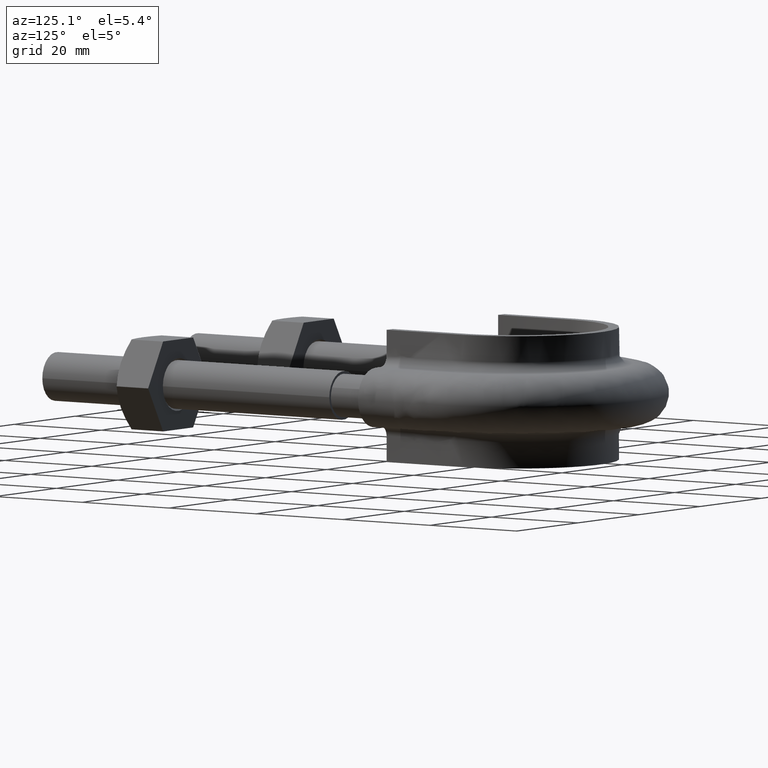
[diagram: clean part render]
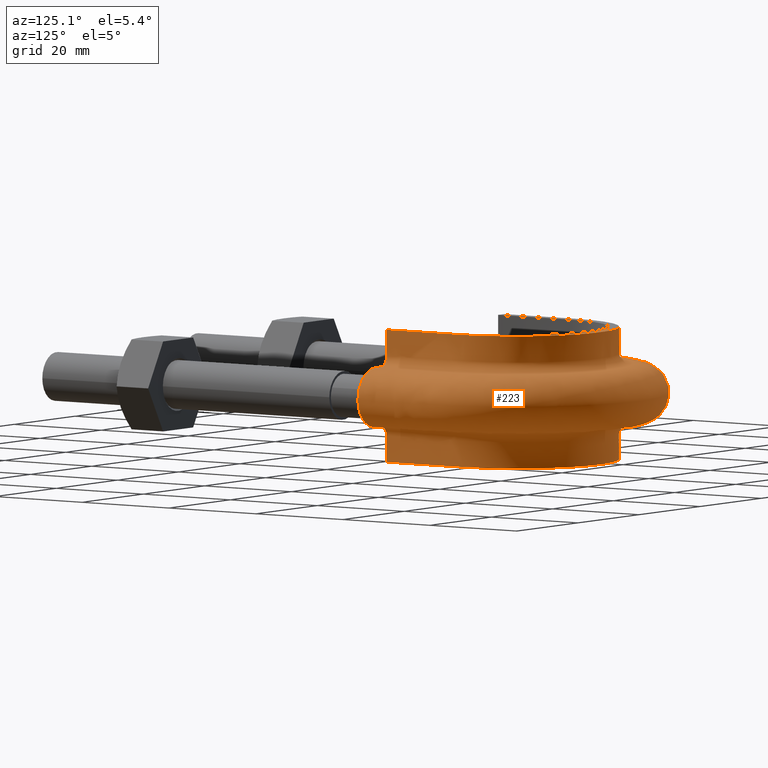
[diagram: same view with one face highlighted and labeled with its STEP entity id]
A machine part, auxiliary view. The second image highlights one B-rep face of the part: STEP entity #223.
In plain terms, the highlighted face is a freeform B-spline surface patch.
Its self-contained STEP definition (entity closure, byte-faithful):
#223 = ADVANCED_FACE( '', ( #306 ), #307, .F. );
#306 = FACE_OUTER_BOUND( '', #479, .T. );
#307 = B_SPLINE_SURFACE_WITH_KNOTS( '', 3, 3, ( ( #480, #481, #482, #483, #484, #485, #486, #487, #488, #489, #490, #491, #492, #493, #494, #495, #496 ), ( #497, #498, #499, #500, #501, #502, #503, #504, #505, #506, #507, #508, #509, #510, #511, #512, #513 ), ( #514, #515, #516, #517, #518, #519, #520, #521, #522, #523, #524, #525, #526, #527, #528, #529, #530 ), ( #531, #532, #533, #534, #535, #536, #537, #538, #539, #540, #541, #542, #543, #544, #545, #546, #547 ), ( #548, #549, #550, #551, #552, #553, #554, #555, #556, #557, #558, #559, #560, #561, #562, #563, #564 ), ( #565, #566, #567, #568, #569, #570, #571, #572, #573, #574, #575, #576, #577, #578, #579, #580, #581 ), ( #582, #583, #584, #585, #586, #587, #588, #589, #590, #591, #592, #593, #594, #595, #596, #597, #598 ), ( #599, #600, #601, #602, #603, #604, #605, #606, #607, #608, #609, #610, #611, #612, #613, #614, #615 ), ( #616, #617, #618, #619, #620, #621, #622, #623, #624, #625, #626, #627, #628, #629, #630, #631, #632 ), ( #633, #634, #635, #636, #637, #638, #639, #640, #641, #642, #643, #644, #645, #646, #647, #648, #649 ), ( #650, #651, #652, #653, #654, #655, #656, #657, #658, #659, #660, #661, #662, #663, #664, #665, #666 ), ( #667, #668, #669, #670, #671, #672, #673, #674, #675, #676, #677, #678, #679, #680, #681, #682, #683 ), ( #684, #685, #686, #687, #688, #689, #690, #691, #692, #693, #694, #695, #696, #697, #698, #699, #700 ), ( #701, #702, #703, #704, #705, #706, #707, #708, #709, #710, #711, #712, #713, #714, #715, #716, #717 ), ( #718, #719, #720, #721, #722, #723, #724, #725, #726, #727, #728, #729, #730, #731, #732, #733, #734 ), ( #735, #736, #737, #738, #739, #740, #741, #742, #743, #744, #745, #746, #747, #748, #749, #750, #751 ), ( #752, #753, #754, #755, #756, #757, #758, #759, #760, #761, #762, #763, #764, #765, #766, #767, #768 ), ( #769, #770, #771, #772, #773, #774, #775, #776, #777, #778, #779, #780, #781, #782, #783, #784, #785 ), ( #786, #787, #788, #789, #790, #791, #792, #793, #794, #795, #796, #797, #798, #799, #800, #801, #802 ), ( #803, #804, #805, #806, #807, #808, #809, #810, #811, #812, #813, #814, #815, #816, #817, #818, #819 ), ( #820, #821, #822, #823, #824, #825, #826, #827, #828, #829, #830, #831, #832, #833, #834, #835, #836 ), ( #837, #838, #839, #840, #841, #842, #843, #844, #845, #846, #847, #848, #849, #850, #851, #852, #853 ), ( #854, #855, #856, #857, #858, #859, #860, #861, #862, #863, #864, #865, #866, #867, #868, #869, #870 ), ( #871, #872, #873, #874, #875, #876, #877, #878, #879, #880, #881, #882, #883, #884, #885, #886, #887 ), ( #888, #889, #890, #891, #892, #893, #894, #895, #896, #897, #898, #899, #900, #901, #902, #903, #904 ), ( #905, #906, #907, #908, #909, #910, #911, #912, #913, #914, #915, #916, #917, #918, #919, #920, #921 ), ( #922, #923, #924, #925, #926, #927, #928, #929, #930, #931, #932, #933, #934, #935, #936, #937, #938 ), ( #939, #940, #941, #942, #943, #944, #945, #946, #947, #948, #949, #950, #951, #952, #953, #954, #955 ), ( #956, #957, #958, #959, #960, #961, #962, #963, #964, #965, #966, #967, #968, #969, #970, #971, #972 ), ( #973, #974, #975, #976, #977, #978, #979, #980, #981, #982, #983, #984, #985, #986, #987, #988, #989 ), ( #990, #991, #992, #993, #994, #995, #996, #997, #998, #999, #1000, #1001, #1002, #1003, #1004, #1005, #1006 ) ), .UNSPECIFIED., .F., .F., .F., ( 4, 3, 1, 1, 1, 3, 3, 1, 1, 1, 3, 3, 1, 1, 1, 3, 4 ), ( 4, 3, 1, 1, 1, 1, 1, 1, 1, 3, 4 ), ( 0.000000000000000, 0.0526315789473684, 0.105263157894737, 0.157894736842105, 0.210526315789474, 0.263157894736842, 0.315789473684211, 0.368421052631579, 0.421052631578947, 0.473684210526316, 0.526315789473684, 0.578947368421053, 0.631578947368421, 0.684210526315789, 0.736842105263158, 0.789473684210526, 0.842105263157895 ), ( 0.000000000000000, 1.00000000000000, 1.50000000000000, 2.00000000000000, 3.00000000000000, 4.00000000000000, 5.00000000000000, 6.00000000000000, 6.50000000000000, 7.00000000000000, 8.00000000000000 ), .UNSPECIFIED. );
#479 = EDGE_LOOP( '', ( #1510, #1511, #1512, #1513 ) );
#480 = CARTESIAN_POINT( '', ( -19.2500000000000, 70.6500000000000, 12.5000000000000 ) );
#481 = CARTESIAN_POINT( '', ( -19.2500000000000, 77.0166666666667, 12.5000000000000 ) );
#482 = CARTESIAN_POINT( '', ( -19.2500000000000, 83.3833333333333, 12.5000000000000 ) );
#483 = CARTESIAN_POINT( '', ( -19.2500000000000, 89.7500000000000, 12.5000000000000 ) );
#484 = CARTESIAN_POINT( '', ( -19.2500000000000, 91.4213262566117, 12.5000000000000 ) );
#485 = CARTESIAN_POINT( '', ( -18.7986999693754, 94.7906376447289, 12.5000000000000 ) );
#486 = CARTESIAN_POINT( '', ( -16.2218507540710, 101.052317358767, 12.5000000000000 ) );
#487 = CARTESIAN_POINT( '', ( -10.0746787092407, 107.200955547449, 12.5000000000000 ) );
#488 = CARTESIAN_POINT( '', ( 1.86625357479645E-014, 109.899522226275, 12.5000000000000 ) );
#489 = CARTESIAN_POINT( '', ( 10.0746787092408, 107.200955547449, 12.5000000000000 ) );
#490 = CARTESIAN_POINT( '', ( 16.2218507540710, 101.052317358767, 12.5000000000000 ) );
#491 = CARTESIAN_POINT( '', ( 18.7986999693755, 94.7906376447289, 12.5000000000000 ) );
#492 = CARTESIAN_POINT( '', ( 19.2500000000000, 91.4213262566117, 12.5000000000000 ) );
#493 = CARTESIAN_POINT( '', ( 19.2500000000000, 89.7500000000000, 12.5000000000000 ) );
#494 = CARTESIAN_POINT( '', ( 19.2500000000000, 83.3833333333333, 12.5000000000000 ) );
#495 = CARTESIAN_POINT( '', ( 19.2500000000000, 77.0166666666667, 12.5000000000000 ) );
#496 = CARTESIAN_POINT( '', ( 19.2500000000000, 70.6500000000000, 12.5000000000000 ) );
#497 = CARTESIAN_POINT( '', ( -19.2500000000000, 70.6500000000000, 10.8666666666667 ) );
#498 = CARTESIAN_POINT( '', ( -19.2500000000000, 77.0166666666667, 10.8666666666667 ) );
#499 = CARTESIAN_POINT( '', ( -19.2500000000000, 83.3833333333333, 10.8666666666667 ) );
#500 = CARTESIAN_POINT( '', ( -19.2500000000000, 89.7500000000000, 10.8666666666667 ) );
#501 = CARTESIAN_POINT( '', ( -19.2500000000000, 91.4213262566117, 10.8666666666667 ) );
#502 = CARTESIAN_POINT( '', ( -18.7986999693754, 94.7906376447289, 10.8666666666667 ) );
#503 = CARTESIAN_POINT( '', ( -16.2218507540710, 101.052317358767, 10.8666666666666 ) );
#504 = CARTESIAN_POINT( '', ( -10.0746787092407, 107.200955547449, 10.8666666666667 ) );
#505 = CARTESIAN_POINT( '', ( 1.82288548789703E-014, 109.899522226275, 10.8666666666667 ) );
#506 = CARTESIAN_POINT( '', ( 10.0746787092408, 107.200955547449, 10.8666666666667 ) );
#507 = CARTESIAN_POINT( '', ( 16.2218507540710, 101.052317358767, 10.8666666666667 ) );
#508 = CARTESIAN_POINT( '', ( 18.7986999693755, 94.7906376447289, 10.8666666666667 ) );
#509 = CARTESIAN_POINT( '', ( 19.2500000000000, 91.4213262566117, 10.8666666666667 ) );
#510 = CARTESIAN_POINT( '', ( 19.2500000000000, 89.7500000000000, 10.8666666666667 ) );
#511 = CARTESIAN_POINT( '', ( 19.2500000000000, 83.3833333333333, 10.8666666666667 ) );
#512 = CARTESIAN_POINT( '', ( 19.2500000000000, 77.0166666666667, 10.8666666666667 ) );
#513 = CARTESIAN_POINT( '', ( 19.2500000000000, 70.6500000000000, 10.8666666666667 ) );
#514 = CARTESIAN_POINT( '', ( -19.2500000000000, 70.6500000000000, 9.23333333333333 ) );
#515 = CARTESIAN_POINT( '', ( -19.2500000000000, 77.0166666666667, 9.23333333333333 ) );
#516 = CARTESIAN_POINT( '', ( -19.2500000000000, 83.3833333333333, 9.23333333333333 ) );
#517 = CARTESIAN_POINT( '', ( -19.2500000000000, 89.7500000000000, 9.23333333333333 ) );
#518 = CARTESIAN_POINT( '', ( -19.2500000000000, 91.4213262566117, 9.23333333333333 ) );
#519 = CARTESIAN_POINT( '', ( -18.7986999693754, 94.7906376447289, 9.23333333333334 ) );
#520 = CARTESIAN_POINT( '', ( -16.2218507540710, 101.052317358767, 9.23333333333331 ) );
#521 = CARTESIAN_POINT( '', ( -10.0746787092407, 107.200955547449, 9.23333333333336 ) );
#522 = CARTESIAN_POINT( '', ( 1.95298974859529E-014, 109.899522226275, 9.23333333333332 ) );
#523 = CARTESIAN_POINT( '', ( 10.0746787092408, 107.200955547449, 9.23333333333335 ) );
#524 = CARTESIAN_POINT( '', ( 16.2218507540710, 101.052317358767, 9.23333333333333 ) );
#525 = CARTESIAN_POINT( '', ( 18.7986999693755, 94.7906376447289, 9.23333333333334 ) );
#526 = CARTESIAN_POINT( '', ( 19.2500000000000, 91.4213262566117, 9.23333333333333 ) );
#527 = CARTESIAN_POINT( '', ( 19.2500000000000, 89.7500000000000, 9.23333333333333 ) );
#528 = CARTESIAN_POINT( '', ( 19.2500000000000, 83.3833333333333, 9.23333333333333 ) );
#529 = CARTESIAN_POINT( '', ( 19.2500000000000, 77.0166666666667, 9.23333333333333 ) );
#530 = CARTESIAN_POINT( '', ( 19.2500000000000, 70.6500000000000, 9.23333333333333 ) );
#531 = CARTESIAN_POINT( '', ( -19.2500000000000, 70.6500000000000, 7.60000000000000 ) );
#532 = CARTESIAN_POINT( '', ( -19.2500000000000, 77.0166666666667, 7.60000000000000 ) );
#533 = CARTESIAN_POINT( '', ( -19.2500000000000, 83.3833333333333, 7.60000000000000 ) );
#534 = CARTESIAN_POINT( '', ( -19.2500000000000, 89.7500000000000, 7.60000000000000 ) );
#535 = CARTESIAN_POINT( '', ( -19.2500000000000, 91.4213262566117, 7.59999999999999 ) );
#536 = CARTESIAN_POINT( '', ( -18.7986999693754, 94.7906376447289, 7.60000000000001 ) );
#537 = CARTESIAN_POINT( '', ( -16.2218507540710, 101.052317358767, 7.59999999999998 ) );
#538 = CARTESIAN_POINT( '', ( -10.0746787092407, 107.200955547449, 7.60000000000001 ) );
#539 = CARTESIAN_POINT( '', ( 1.99635783549471E-014, 109.899522226275, 7.59999999999999 ) );
#540 = CARTESIAN_POINT( '', ( 10.0746787092408, 107.200955547449, 7.60000000000001 ) );
#541 = CARTESIAN_POINT( '', ( 16.2218507540710, 101.052317358767, 7.59999999999999 ) );
#542 = CARTESIAN_POINT( '', ( 18.7986999693755, 94.7906376447289, 7.60000000000000 ) );
#543 = CARTESIAN_POINT( '', ( 19.2500000000000, 91.4213262566117, 7.59999999999999 ) );
#544 = CARTESIAN_POINT( '', ( 19.2500000000000, 89.7500000000000, 7.59999999999999 ) );
#545 = CARTESIAN_POINT( '', ( 19.2500000000000, 83.3833333333333, 7.60000000000000 ) );
#546 = CARTESIAN_POINT( '', ( 19.2500000000000, 77.0166666666667, 7.60000000000000 ) );
#547 = CARTESIAN_POINT( '', ( 19.2500000000000, 70.6500000000000, 7.60000000000000 ) );
#548 = CARTESIAN_POINT( '', ( -19.2500000000000, 70.6500000000000, 7.33823584172333 ) );
#549 = CARTESIAN_POINT( '', ( -19.2500000000000, 77.0166666666667, 7.33823584172333 ) );
#550 = CARTESIAN_POINT( '', ( -19.2500000000000, 83.3833333333333, 7.33823584172333 ) );
#551 = CARTESIAN_POINT( '', ( -19.2500000000000, 89.7500000000000, 7.33823584172333 ) );
#552 = CARTESIAN_POINT( '', ( -19.2500000000000, 91.4213262566117, 7.33823584172332 ) );
#553 = CARTESIAN_POINT( '', ( -18.7986999693754, 94.7906376447289, 7.33823584172334 ) );
#554 = CARTESIAN_POINT( '', ( -16.2218507540710, 101.052317358767, 7.33823584172331 ) );
#555 = CARTESIAN_POINT( '', ( -10.0746787092407, 107.200955547449, 7.33823584172335 ) );
#556 = CARTESIAN_POINT( '', ( 1.73614931409819E-014, 109.899522226275, 7.33823584172332 ) );
#557 = CARTESIAN_POINT( '', ( 10.0746787092408, 107.200955547449, 7.33823584172334 ) );
#558 = CARTESIAN_POINT( '', ( 16.2218507540710, 101.052317358767, 7.33823584172332 ) );
#559 = CARTESIAN_POINT( '', ( 18.7986999693755, 94.7906376447289, 7.33823584172333 ) );
#560 = CARTESIAN_POINT( '', ( 19.2500000000000, 91.4213262566117, 7.33823584172332 ) );
#561 = CARTESIAN_POINT( '', ( 19.2500000000000, 89.7500000000000, 7.33823584172332 ) );
#562 = CARTESIAN_POINT( '', ( 19.2500000000000, 83.3833333333333, 7.33823584172333 ) );
#563 = CARTESIAN_POINT( '', ( 19.2500000000000, 77.0166666666667, 7.33823584172333 ) );
#564 = CARTESIAN_POINT( '', ( 19.2500000000000, 70.6500000000000, 7.33823584172333 ) );
#565 = CARTESIAN_POINT( '', ( -19.3541362568359, 70.6500000000000, 6.81470752517000 ) );
#566 = CARTESIAN_POINT( '', ( -19.3541362568359, 77.0166666666667, 6.81470752517000 ) );
#567 = CARTESIAN_POINT( '', ( -19.3541362568359, 83.3833333333333, 6.81470752517000 ) );
#568 = CARTESIAN_POINT( '', ( -19.3541362568359, 89.7500000000000, 6.81470752517000 ) );
#569 = CARTESIAN_POINT( '', ( -19.3541362568359, 91.4306273319191, 6.81470752517000 ) );
#570 = CARTESIAN_POINT( '', ( -18.9004403577331, 94.8178005625328, 6.81470752517001 ) );
#571 = CARTESIAN_POINT( '', ( -16.3095794980578, 101.113520191572, 6.81470752516999 ) );
#572 = CARTESIAN_POINT( '', ( -10.1291877296943, 107.295337389458, 6.81470752517002 ) );
#573 = CARTESIAN_POINT( '', ( 1.78085238680733E-014, 110.008535690525, 6.81470752516999 ) );
#574 = CARTESIAN_POINT( '', ( 10.1291877296943, 107.295337389458, 6.81470752517001 ) );
#575 = CARTESIAN_POINT( '', ( 16.3095794980579, 101.113520191572, 6.81470752517000 ) );
#576 = CARTESIAN_POINT( '', ( 18.9004403577331, 94.8178005625328, 6.81470752517000 ) );
#577 = CARTESIAN_POINT( '', ( 19.3541362568359, 91.4306273319190, 6.81470752517000 ) );
#578 = CARTESIAN_POINT( '', ( 19.3541362568359, 89.7500000000000, 6.81470752517000 ) );
#579 = CARTESIAN_POINT( '', ( 19.3541362568359, 83.3833333333333, 6.81470752517000 ) );
#580 = CARTESIAN_POINT( '', ( 19.3541362568359, 77.0166666666667, 6.81470752517000 ) );
#581 = CARTESIAN_POINT( '', ( 19.3541362568359, 70.6500000000000, 6.81470752517000 ) );
#582 = CARTESIAN_POINT( '', ( -19.7989687109389, 70.6500000000000, 6.14896871093887 ) );
#583 = CARTESIAN_POINT( '', ( -19.7989687109389, 77.0166666666667, 6.14896871093887 ) );
#584 = CARTESIAN_POINT( '', ( -19.7989687109389, 83.3833333333333, 6.14896871093887 ) );
#585 = CARTESIAN_POINT( '', ( -19.7989687109389, 89.7500000000000, 6.14896871093887 ) );
#586 = CARTESIAN_POINT( '', ( -19.7989687109389, 91.4703581642004, 6.14896871093887 ) );
#587 = CARTESIAN_POINT( '', ( -19.3350385275698, 94.9338307306454, 6.14896871093888 ) );
#588 = CARTESIAN_POINT( '', ( -16.6843249869854, 101.374956574458, 6.14896871093885 ) );
#589 = CARTESIAN_POINT( '', ( -10.3620305653774, 107.698502508691, 6.14896871093888 ) );
#590 = CARTESIAN_POINT( '', ( 1.87329113751812E-014, 110.474201812063, 6.14896871093886 ) );
#591 = CARTESIAN_POINT( '', ( 10.3620305653774, 107.698502508691, 6.14896871093888 ) );
#592 = CARTESIAN_POINT( '', ( 16.6843249869854, 101.374956574458, 6.14896871093886 ) );
#593 = CARTESIAN_POINT( '', ( 19.3350385275698, 94.9338307306455, 6.14896871093887 ) );
#594 = CARTESIAN_POINT( '', ( 19.7989687109389, 91.4703581642004, 6.14896871093887 ) );
#595 = CARTESIAN_POINT( '', ( 19.7989687109389, 89.7500000000000, 6.14896871093887 ) );
#596 = CARTESIAN_POINT( '', ( 19.7989687109389, 83.3833333333333, 6.14896871093887 ) );
#597 = CARTESIAN_POINT( '', ( 19.7989687109389, 77.0166666666667, 6.14896871093887 ) );
#598 = CARTESIAN_POINT( '', ( 19.7989687109389, 70.6500000000000, 6.14896871093887 ) );
#599 = CARTESIAN_POINT( '', ( -20.4647075251700, 70.6500000000000, 5.70413625683590 ) );
#600 = CARTESIAN_POINT( '', ( -20.4647075251700, 77.0166666666667, 5.70413625683590 ) );
#601 = CARTESIAN_POINT( '', ( -20.4647075251700, 83.3833333333333, 5.70413625683590 ) );
#602 = CARTESIAN_POINT( '', ( -20.4647075251700, 89.7500000000000, 5.70413625683590 ) );
#603 = CARTESIAN_POINT( '', ( -20.4647075251700, 91.5298195567482, 5.70413625683590 ) );
#604 = CARTESIAN_POINT( '', ( -19.9854606529912, 95.1074821488859, 5.70413625683591 ) );
#605 = CARTESIAN_POINT( '', ( -17.2451712452472, 101.766223771656, 5.70413625683589 ) );
#606 = CARTESIAN_POINT( '', ( -10.7105044950561, 108.301881749440, 5.70413625683592 ) );
#607 = CARTESIAN_POINT( '', ( 1.88182564698659E-014, 111.171120413035, 5.70413625683589 ) );
#608 = CARTESIAN_POINT( '', ( 10.7105044950562, 108.301881749440, 5.70413625683591 ) );
#609 = CARTESIAN_POINT( '', ( 17.2451712452472, 101.766223771656, 5.70413625683590 ) );
#610 = CARTESIAN_POINT( '', ( 19.9854606529912, 95.1074821488860, 5.70413625683590 ) );
#611 = CARTESIAN_POINT( '', ( 20.4647075251700, 91.5298195567482, 5.70413625683590 ) );
#612 = CARTESIAN_POINT( '', ( 20.4647075251700, 89.7500000000000, 5.70413625683590 ) );
#613 = CARTESIAN_POINT( '', ( 20.4647075251700, 83.3833333333333, 5.70413625683590 ) );
#614 = CARTESIAN_POINT( '', ( 20.4647075251700, 77.0166666666667, 5.70413625683590 ) );
#615 = CARTESIAN_POINT( '', ( 20.4647075251700, 70.6500000000000, 5.70413625683590 ) );
#616 = CARTESIAN_POINT( '', ( -20.9882358417233, 70.6500000000000, 5.59999999999999 ) );
#617 = CARTESIAN_POINT( '', ( -20.9882358417233, 77.0166666666667, 5.59999999999999 ) );
#618 = CARTESIAN_POINT( '', ( -20.9882358417233, 83.3833333333333, 5.59999999999999 ) );
#619 = CARTESIAN_POINT( '', ( -20.9882358417233, 89.7500000000000, 5.59999999999999 ) );
#620 = CARTESIAN_POINT( '', ( -20.9882358417233, 91.5765792199599, 5.59999999999999 ) );
#621 = CARTESIAN_POINT( '', ( -20.4969441253259, 95.2440393582827, 5.60000000000000 ) );
#622 = CARTESIAN_POINT( '', ( -17.6862134244870, 102.073911190044, 5.59999999999998 ) );
#623 = CARTESIAN_POINT( '', ( -10.9845398462593, 108.776371311112, 5.60000000000001 ) );
#624 = CARTESIAN_POINT( '', ( 1.71506472627154E-014, 111.719168107029, 5.59999999999999 ) );
#625 = CARTESIAN_POINT( '', ( 10.9845398462594, 108.776371311112, 5.60000000000000 ) );
#626 = CARTESIAN_POINT( '', ( 17.6862134244871, 102.073911190044, 5.59999999999999 ) );
#627 = CARTESIAN_POINT( '', ( 20.4969441253259, 95.2440393582828, 5.59999999999999 ) );
#628 = CARTESIAN_POINT( '', ( 20.9882358417234, 91.5765792199599, 5.59999999999999 ) );
#629 = CARTESIAN_POINT( '', ( 20.9882358417234, 89.7500000000000, 5.59999999999999 ) );
#630 = CARTESIAN_POINT( '', ( 20.9882358417234, 83.3833333333333, 5.59999999999999 ) );
#631 = CARTESIAN_POINT( '', ( 20.9882358417234, 77.0166666666667, 5.59999999999999 ) );
#632 = CARTESIAN_POINT( '', ( 20.9882358417233, 70.6500000000000, 5.59999999999999 ) );
#633 = CARTESIAN_POINT( '', ( -21.2500000000000, 70.6500000000000, 5.59999999999999 ) );
#634 = CARTESIAN_POINT( '', ( -21.2500000000000, 77.0166666666667, 5.59999999999999 ) );
#635 = CARTESIAN_POINT( '', ( -21.2500000000000, 83.3833333333333, 5.59999999999999 ) );
#636 = CARTESIAN_POINT( '', ( -21.2500000000000, 89.7500000000000, 5.59999999999999 ) );
#637 = CARTESIAN_POINT( '', ( -21.2500000000000, 91.5999590515658, 5.59999999999999 ) );
#638 = CARTESIAN_POINT( '', ( -20.7526858614932, 95.3123179629811, 5.60000000000000 ) );
#639 = CARTESIAN_POINT( '', ( -17.9067345141069, 102.227754899238, 5.59999999999998 ) );
#640 = CARTESIAN_POINT( '', ( -11.1215575218609, 109.013616091948, 5.60000000000001 ) );
#641 = CARTESIAN_POINT( '', ( 1.80515661351169E-014, 111.993191954026, 5.59999999999999 ) );
#642 = CARTESIAN_POINT( '', ( 11.1215575218610, 109.013616091948, 5.60000000000000 ) );
#643 = CARTESIAN_POINT( '', ( 17.9067345141070, 102.227754899238, 5.59999999999999 ) );
#644 = CARTESIAN_POINT( '', ( 20.7526858614933, 95.3123179629812, 5.59999999999999 ) );
#645 = CARTESIAN_POINT( '', ( 21.2500000000000, 91.5999590515658, 5.59999999999999 ) );
#646 = CARTESIAN_POINT( '', ( 21.2500000000000, 89.7500000000000, 5.59999999999999 ) );
#647 = CARTESIAN_POINT( '', ( 21.2500000000000, 83.3833333333333, 5.59999999999999 ) );
#648 = CARTESIAN_POINT( '', ( 21.2500000000000, 77.0166666666667, 5.59999999999999 ) );
#649 = CARTESIAN_POINT( '', ( 21.2500000000000, 70.6500000000000, 5.59999999999999 ) );
#650 = CARTESIAN_POINT( '', ( -21.8333333333333, 70.6500000000000, 5.60000000000001 ) );
#651 = CARTESIAN_POINT( '', ( -21.8333333333333, 77.0166666666667, 5.60000000000001 ) );
#652 = CARTESIAN_POINT( '', ( -21.8333333333333, 83.3833333333333, 5.60000000000001 ) );
#653 = CARTESIAN_POINT( '', ( -21.8333333333333, 89.7500000000000, 5.60000000000001 ) );
#654 = CARTESIAN_POINT( '', ( -21.8333333333333, 91.6520602834274, 5.60000000000001 ) );
#655 = CARTESIAN_POINT( '', ( -21.3225984133610, 95.4644747224713, 5.60000000000002 ) );
#656 = CARTESIAN_POINT( '', ( -18.3981589441174, 102.570590848543, 5.60000000000000 ) );
#657 = CARTESIAN_POINT( '', ( -11.4268971755419, 109.542308750761, 5.60000000000002 ) );
#658 = CARTESIAN_POINT( '', ( 1.81263471716164E-014, 112.603845624620, 5.60000000000000 ) );
#659 = CARTESIAN_POINT( '', ( 11.4268971755419, 109.542308750761, 5.60000000000002 ) );
#660 = CARTESIAN_POINT( '', ( 18.3981589441175, 102.570590848542, 5.60000000000000 ) );
#661 = CARTESIAN_POINT( '', ( 21.3225984133610, 95.4644747224714, 5.60000000000001 ) );
#662 = CARTESIAN_POINT( '', ( 21.8333333333334, 91.6520602834274, 5.60000000000001 ) );
#663 = CARTESIAN_POINT( '', ( 21.8333333333334, 89.7500000000000, 5.60000000000001 ) );
#664 = CARTESIAN_POINT( '', ( 21.8333333333334, 83.3833333333333, 5.60000000000001 ) );
#665 = CARTESIAN_POINT( '', ( 21.8333333333334, 77.0166666666667, 5.60000000000001 ) );
#666 = CARTESIAN_POINT( '', ( 21.8333333333334, 70.6500000000000, 5.60000000000001 ) );
#667 = CARTESIAN_POINT( '', ( -22.4166666666667, 70.6500000000000, 5.60000000000001 ) );
#668 = CARTESIAN_POINT( '', ( -22.4166666666667, 77.0166666666667, 5.60000000000001 ) );
#669 = CARTESIAN_POINT( '', ( -22.4166666666667, 83.3833333333333, 5.60000000000001 ) );
#670 = CARTESIAN_POINT( '', ( -22.4166666666667, 89.7500000000000, 5.60000000000001 ) );
#671 = CARTESIAN_POINT( '', ( -22.4166666666667, 91.7041615152890, 5.60000000000001 ) );
#672 = CARTESIAN_POINT( '', ( -21.8925109652286, 95.6166314819616, 5.60000000000002 ) );
#673 = CARTESIAN_POINT( '', ( -18.8895833741279, 102.913426797847, 5.60000000000000 ) );
#674 = CARTESIAN_POINT( '', ( -11.7322368292227, 110.071001409573, 5.60000000000002 ) );
#675 = CARTESIAN_POINT( '', ( 1.90684899461042E-014, 113.214499295213, 5.60000000000000 ) );
#676 = CARTESIAN_POINT( '', ( 11.7322368292228, 110.071001409573, 5.60000000000002 ) );
#677 = CARTESIAN_POINT( '', ( 18.8895833741280, 102.913426797847, 5.60000000000000 ) );
#678 = CARTESIAN_POINT( '', ( 21.8925109652287, 95.6166314819616, 5.60000000000001 ) );
#679 = CARTESIAN_POINT( '', ( 22.4166666666667, 91.7041615152890, 5.60000000000001 ) );
#680 = CARTESIAN_POINT( '', ( 22.4166666666667, 89.7500000000000, 5.60000000000001 ) );
#681 = CARTESIAN_POINT( '', ( 22.4166666666667, 83.3833333333333, 5.60000000000001 ) );
#682 = CARTESIAN_POINT( '', ( 22.4166666666667, 77.0166666666667, 5.60000000000001 ) );
#683 = CARTESIAN_POINT( '', ( 22.4166666666667, 70.6500000000000, 5.60000000000001 ) );
#684 = CARTESIAN_POINT( '', ( -23.0000000000000, 70.6500000000000, 5.60000000000001 ) );
#685 = CARTESIAN_POINT( '', ( -23.0000000000000, 77.0166666666667, 5.60000000000001 ) );
#686 = CARTESIAN_POINT( '', ( -23.0000000000000, 83.3833333333333, 5.60000000000001 ) );
#687 = CARTESIAN_POINT( '', ( -23.0000000000000, 89.7500000000000, 5.60000000000001 ) );
#688 = CARTESIAN_POINT( '', ( -23.0000000000000, 91.7562627471506, 5.60000000000001 ) );
#689 = CARTESIAN_POINT( '', ( -22.4624235170963, 95.7687882414518, 5.60000000000002 ) );
#690 = CARTESIAN_POINT( '', ( -19.3810078041384, 103.256262747151, 5.60000000000000 ) );
#691 = CARTESIAN_POINT( '', ( -12.0375764829036, 110.599694068385, 5.60000000000002 ) );
#692 = CARTESIAN_POINT( '', ( 1.91432709826036E-014, 113.825152965807, 5.60000000000000 ) );
#693 = CARTESIAN_POINT( '', ( 12.0375764829037, 110.599694068385, 5.60000000000002 ) );
#694 = CARTESIAN_POINT( '', ( 19.3810078041385, 103.256262747151, 5.60000000000000 ) );
#695 = CARTESIAN_POINT( '', ( 22.4624235170964, 95.7687882414519, 5.60000000000001 ) );
#696 = CARTESIAN_POINT( '', ( 23.0000000000000, 91.7562627471506, 5.60000000000001 ) );
#697 = CARTESIAN_POINT( '', ( 23.0000000000000, 89.7500000000000, 5.60000000000001 ) );
#698 = CARTESIAN_POINT( '', ( 23.0000000000000, 83.3833333333333, 5.60000000000001 ) );
#699 = CARTESIAN_POINT( '', ( 23.0000000000000, 77.0166666666667, 5.60000000000001 ) );
#700 = CARTESIAN_POINT( '', ( 23.0000000000000, 70.6500000000000, 5.60000000000001 ) );
#701 = CARTESIAN_POINT( '', ( -24.4627416997969, 70.6500000000000, 5.60000000000001 ) );
#702 = CARTESIAN_POINT( '', ( -24.4627416997969, 77.0166666666667, 5.60000000000001 ) );
#703 = CARTESIAN_POINT( '', ( -24.4627416997969, 83.3833333333333, 5.60000000000001 ) );
#704 = CARTESIAN_POINT( '', ( -24.4627416997969, 89.7500000000000, 5.60000000000001 ) );
#705 = CARTESIAN_POINT( '', ( -24.4627416997969, 91.8869095662159, 5.60000000000001 ) );
#706 = CARTESIAN_POINT( '', ( -23.8915118397042, 96.1503300191872, 5.60000000000002 ) );
#707 = CARTESIAN_POINT( '', ( -20.6132826716961, 104.115943500128, 5.60000000000000 ) );
#708 = CARTESIAN_POINT( '', ( -12.8032331298304, 111.925421151393, 5.60000000000003 ) );
#709 = CARTESIAN_POINT( '', ( 1.88971078400809E-014, 115.356401973999, 5.60000000000001 ) );
#710 = CARTESIAN_POINT( '', ( 12.8032331298304, 111.925421151393, 5.60000000000002 ) );
#711 = CARTESIAN_POINT( '', ( 20.6132826716961, 104.115943500127, 5.60000000000001 ) );
#712 = CARTESIAN_POINT( '', ( 23.8915118397042, 96.1503300191873, 5.60000000000001 ) );
#713 = CARTESIAN_POINT( '', ( 24.4627416997970, 91.8869095662159, 5.60000000000001 ) );
#714 = CARTESIAN_POINT( '', ( 24.4627416997970, 89.7500000000000, 5.60000000000001 ) );
#715 = CARTESIAN_POINT( '', ( 24.4627416997970, 83.3833333333333, 5.60000000000001 ) );
#716 = CARTESIAN_POINT( '', ( 24.4627416997970, 77.0166666666667, 5.60000000000001 ) );
#717 = CARTESIAN_POINT( '', ( 24.4627416997970, 70.6500000000000, 5.60000000000001 ) );
#718 = CARTESIAN_POINT( '', ( -27.3882250993908, 70.6500000000000, 4.38822509939087 ) );
#719 = CARTESIAN_POINT( '', ( -27.3882250993908, 77.0166666666667, 4.38822509939087 ) );
#720 = CARTESIAN_POINT( '', ( -27.3882250993908, 83.3833333333333, 4.38822509939087 ) );
#721 = CARTESIAN_POINT( '', ( -27.3882250993908, 89.7500000000000, 4.38822509939087 ) );
#722 = CARTESIAN_POINT( '', ( -27.3882250993908, 92.1482032043465, 4.38822509939087 ) );
#723 = CARTESIAN_POINT( '', ( -26.7496884849199, 96.9134135746581, 4.38822509939088 ) );
#724 = CARTESIAN_POINT( '', ( -23.0778324068114, 105.835305006081, 4.38822509939086 ) );
#725 = CARTESIAN_POINT( '', ( -14.3345464236839, 114.576875317409, 4.38822509939088 ) );
#726 = CARTESIAN_POINT( '', ( 2.14405476379950E-014, 118.418899990382, 4.38822509939087 ) );
#727 = CARTESIAN_POINT( '', ( 14.3345464236839, 114.576875317409, 4.38822509939088 ) );
#728 = CARTESIAN_POINT( '', ( 23.0778324068114, 105.835305006081, 4.38822509939087 ) );
#729 = CARTESIAN_POINT( '', ( 26.7496884849199, 96.9134135746582, 4.38822509939087 ) );
#730 = CARTESIAN_POINT( '', ( 27.3882250993909, 92.1482032043465, 4.38822509939087 ) );
#731 = CARTESIAN_POINT( '', ( 27.3882250993909, 89.7500000000000, 4.38822509939087 ) );
#732 = CARTESIAN_POINT( '', ( 27.3882250993909, 83.3833333333333, 4.38822509939087 ) );
#733 = CARTESIAN_POINT( '', ( 27.3882250993909, 77.0166666666667, 4.38822509939087 ) );
#734 = CARTESIAN_POINT( '', ( 27.3882250993909, 70.6500000000000, 4.38822509939087 ) );
#735 = CARTESIAN_POINT( '', ( -29.2058874503046, 70.6500000000000, 9.94452457394279E-015 ) );
#736 = CARTESIAN_POINT( '', ( -29.2058874503046, 77.0166666666667, 9.94452457394279E-015 ) );
#737 = CARTESIAN_POINT( '', ( -29.2058874503046, 83.3833333333333, 9.94452457394279E-015 ) );
#738 = CARTESIAN_POINT( '', ( -29.2058874503046, 89.7500000000000, 9.94452457394279E-015 ) );
#739 = CARTESIAN_POINT( '', ( -29.2058874503046, 92.3105502573598, 9.94452457394278E-015 ) );
#740 = CARTESIAN_POINT( '', ( -28.5255317800794, 97.3875329115080, 9.94452457394280E-015 ) );
#741 = CARTESIAN_POINT( '', ( -24.6091072949530, 106.903579287664, 9.94452457394276E-015 ) );
#742 = CARTESIAN_POINT( '', ( -15.2859825255184, 116.224277730771, 9.94452457394281E-015 ) );
#743 = CARTESIAN_POINT( '', ( 2.34082882704415E-014, 120.321692310071, 9.94452457394278E-015 ) );
#744 = CARTESIAN_POINT( '', ( 15.2859825255184, 116.224277730771, 9.94452457394280E-015 ) );
#745 = CARTESIAN_POINT( '', ( 24.6091072949531, 106.903579287664, 9.94452457394278E-015 ) );
#746 = CARTESIAN_POINT( '', ( 28.5255317800795, 97.3875329115080, 9.94452457394279E-015 ) );
#747 = CARTESIAN_POINT( '', ( 29.2058874503046, 92.3105502573598, 9.94452457394278E-015 ) );
#748 = CARTESIAN_POINT( '', ( 29.2058874503046, 89.7500000000000, 9.94452457394278E-015 ) );
#749 = CARTESIAN_POINT( '', ( 29.2058874503046, 83.3833333333333, 9.94452457394279E-015 ) );
#750 = CARTESIAN_POINT( '', ( 29.2058874503046, 77.0166666666667, 9.94452457394279E-015 ) );
#751 = CARTESIAN_POINT( '', ( 29.2058874503046, 70.6500000000000, 9.94452457394279E-015 ) );
#752 = CARTESIAN_POINT( '', ( -27.3882250993908, 70.6500000000000, -4.38822509939085 ) );
#753 = CARTESIAN_POINT( '', ( -27.3882250993908, 77.0166666666667, -4.38822509939085 ) );
#754 = CARTESIAN_POINT( '', ( -27.3882250993908, 83.3833333333333, -4.38822509939085 ) );
#755 = CARTESIAN_POINT( '', ( -27.3882250993908, 89.7500000000000, -4.38822509939085 ) );
#756 = CARTESIAN_POINT( '', ( -27.3882250993908, 92.1482032043465, -4.38822509939085 ) );
#757 = CARTESIAN_POINT( '', ( -26.7496884849199, 96.9134135746581, -4.38822509939085 ) );
#758 = CARTESIAN_POINT( '', ( -23.0778324068114, 105.835305006081, -4.38822509939084 ) );
#759 = CARTESIAN_POINT( '', ( -14.3345464236839, 114.576875317409, -4.38822509939086 ) );
#760 = CARTESIAN_POINT( '', ( 2.66447180659255E-014, 118.418899990382, -4.38822509939084 ) );
#761 = CARTESIAN_POINT( '', ( 14.3345464236839, 114.576875317409, -4.38822509939086 ) );
#762 = CARTESIAN_POINT( '', ( 23.0778324068114, 105.835305006081, -4.38822509939085 ) );
#763 = CARTESIAN_POINT( '', ( 26.7496884849199, 96.9134135746582, -4.38822509939085 ) );
#764 = CARTESIAN_POINT( '', ( 27.3882250993909, 92.1482032043465, -4.38822509939085 ) );
#765 = CARTESIAN_POINT( '', ( 27.3882250993909, 89.7500000000000, -4.38822509939085 ) );
#766 = CARTESIAN_POINT( '', ( 27.3882250993909, 83.3833333333333, -4.38822509939085 ) );
#767 = CARTESIAN_POINT( '', ( 27.3882250993909, 77.0166666666667, -4.38822509939085 ) );
#768 = CARTESIAN_POINT( '', ( 27.3882250993909, 70.6500000000000, -4.38822509939085 ) );
#769 = CARTESIAN_POINT( '', ( -24.4627416997969, 70.6500000000000, -5.59999999999999 ) );
#770 = CARTESIAN_POINT( '', ( -24.4627416997969, 77.0166666666667, -5.59999999999999 ) );
#771 = CARTESIAN_POINT( '', ( -24.4627416997969, 83.3833333333333, -5.59999999999999 ) );
#772 = CARTESIAN_POINT( '', ( -24.4627416997969, 89.7500000000000, -5.59999999999999 ) );
#773 = CARTESIAN_POINT( '', ( -24.4627416997969, 91.8869095662159, -5.59999999999999 ) );
#774 = CARTESIAN_POINT( '', ( -23.8915118397042, 96.1503300191872, -5.60000000000000 ) );
#775 = CARTESIAN_POINT( '', ( -20.6132826716961, 104.115943500128, -5.59999999999998 ) );
#776 = CARTESIAN_POINT( '', ( -12.8032331298304, 111.925421151393, -5.60000000000001 ) );
#777 = CARTESIAN_POINT( '', ( 2.54023208749940E-014, 115.356401973999, -5.59999999999999 ) );
#778 = CARTESIAN_POINT( '', ( 12.8032331298304, 111.925421151393, -5.60000000000000 ) );
#779 = CARTESIAN_POINT( '', ( 20.6132826716961, 104.115943500128, -5.59999999999999 ) );
#780 = CARTESIAN_POINT( '', ( 23.8915118397042, 96.1503300191873, -5.59999999999999 ) );
#781 = CARTESIAN_POINT( '', ( 24.4627416997970, 91.8869095662159, -5.59999999999999 ) );
#782 = CARTESIAN_POINT( '', ( 24.4627416997970, 89.7500000000000, -5.59999999999999 ) );
#783 = CARTESIAN_POINT( '', ( 24.4627416997970, 83.3833333333333, -5.59999999999999 ) );
#784 = CARTESIAN_POINT( '', ( 24.4627416997970, 77.0166666666667, -5.59999999999999 ) );
#785 = CARTESIAN_POINT( '', ( 24.4627416997970, 70.6500000000000, -5.59999999999999 ) );
#786 = CARTESIAN_POINT( '', ( -23.0000000000000, 70.6500000000000, -5.59999999999999 ) );
#787 = CARTESIAN_POINT( '', ( -23.0000000000000, 77.0166666666667, -5.59999999999999 ) );
#788 = CARTESIAN_POINT( '', ( -23.0000000000000, 83.3833333333333, -5.59999999999999 ) );
#789 = CARTESIAN_POINT( '', ( -23.0000000000000, 89.7500000000000, -5.59999999999999 ) );
#790 = CARTESIAN_POINT( '', ( -23.0000000000000, 91.7562627471506, -5.59999999999999 ) );
#791 = CARTESIAN_POINT( '', ( -22.4624235170963, 95.7687882414518, -5.60000000000000 ) );
#792 = CARTESIAN_POINT( '', ( -19.3810078041384, 103.256262747151, -5.59999999999998 ) );
#793 = CARTESIAN_POINT( '', ( -12.0375764829036, 110.599694068385, -5.60000000000001 ) );
#794 = CARTESIAN_POINT( '', ( 2.52148031485224E-014, 113.825152965807, -5.59999999999999 ) );
#795 = CARTESIAN_POINT( '', ( 12.0375764829037, 110.599694068385, -5.60000000000000 ) );
#796 = CARTESIAN_POINT( '', ( 19.3810078041385, 103.256262747151, -5.59999999999999 ) );
#797 = CARTESIAN_POINT( '', ( 22.4624235170964, 95.7687882414519, -5.59999999999999 ) );
#798 = CARTESIAN_POINT( '', ( 23.0000000000000, 91.7562627471506, -5.59999999999999 ) );
#799 = CARTESIAN_POINT( '', ( 23.0000000000000, 89.7500000000000, -5.59999999999999 ) );
#800 = CARTESIAN_POINT( '', ( 23.0000000000000, 83.3833333333333, -5.59999999999999 ) );
#801 = CARTESIAN_POINT( '', ( 23.0000000000000, 77.0166666666667, -5.59999999999999 ) );
#802 = CARTESIAN_POINT( '', ( 23.0000000000000, 70.6500000000000, -5.59999999999999 ) );
#803 = CARTESIAN_POINT( '', ( -22.4166666666667, 70.6500000000000, -5.59999999999999 ) );
#804 = CARTESIAN_POINT( '', ( -22.4166666666667, 77.0166666666667, -5.59999999999999 ) );
#805 = CARTESIAN_POINT( '', ( -22.4166666666667, 83.3833333333333, -5.59999999999999 ) );
#806 = CARTESIAN_POINT( '', ( -22.4166666666667, 89.7500000000000, -5.59999999999999 ) );
#807 = CARTESIAN_POINT( '', ( -22.4166666666667, 91.7041615152890, -5.59999999999999 ) );
#808 = CARTESIAN_POINT( '', ( -21.8925109652286, 95.6166314819616, -5.60000000000000 ) );
#809 = CARTESIAN_POINT( '', ( -18.8895833741279, 102.913426797847, -5.59999999999998 ) );
#810 = CARTESIAN_POINT( '', ( -11.7322368292227, 110.071001409573, -5.60000000000000 ) );
#811 = CARTESIAN_POINT( '', ( 2.12368942910752E-014, 113.214499295213, -5.59999999999998 ) );
#812 = CARTESIAN_POINT( '', ( 11.7322368292228, 110.071001409573, -5.60000000000000 ) );
#813 = CARTESIAN_POINT( '', ( 18.8895833741280, 102.913426797847, -5.59999999999999 ) );
#814 = CARTESIAN_POINT( '', ( 21.8925109652287, 95.6166314819616, -5.59999999999999 ) );
#815 = CARTESIAN_POINT( '', ( 22.4166666666667, 91.7041615152890, -5.59999999999999 ) );
#816 = CARTESIAN_POINT( '', ( 22.4166666666667, 89.7500000000000, -5.59999999999999 ) );
#817 = CARTESIAN_POINT( '', ( 22.4166666666667, 83.3833333333333, -5.59999999999999 ) );
#818 = CARTESIAN_POINT( '', ( 22.4166666666667, 77.0166666666667, -5.59999999999999 ) );
#819 = CARTESIAN_POINT( '', ( 22.4166666666667, 70.6500000000000, -5.59999999999999 ) );
#820 = CARTESIAN_POINT( '', ( -21.8333333333333, 70.6500000000000, -5.59999999999999 ) );
#821 = CARTESIAN_POINT( '', ( -21.8333333333333, 77.0166666666667, -5.59999999999999 ) );
#822 = CARTESIAN_POINT( '', ( -21.8333333333333, 83.3833333333333, -5.59999999999999 ) );
#823 = CARTESIAN_POINT( '', ( -21.8333333333333, 89.7500000000000, -5.59999999999999 ) );
#824 = CARTESIAN_POINT( '', ( -21.8333333333333, 91.6520602834274, -5.59999999999999 ) );
#825 = CARTESIAN_POINT( '', ( -21.3225984133610, 95.4644747224713, -5.60000000000000 ) );
#826 = CARTESIAN_POINT( '', ( -18.3981589441174, 102.570590848543, -5.59999999999998 ) );
#827 = CARTESIAN_POINT( '', ( -11.4268971755419, 109.542308750761, -5.60000000000000 ) );
#828 = CARTESIAN_POINT( '', ( 2.11621132545758E-014, 112.603845624620, -5.59999999999998 ) );
#829 = CARTESIAN_POINT( '', ( 11.4268971755419, 109.542308750761, -5.60000000000000 ) );
#830 = CARTESIAN_POINT( '', ( 18.3981589441175, 102.570590848542, -5.59999999999999 ) );
#831 = CARTESIAN_POINT( '', ( 21.3225984133610, 95.4644747224714, -5.59999999999999 ) );
#832 = CARTESIAN_POINT( '', ( 21.8333333333334, 91.6520602834274, -5.59999999999999 ) );
#833 = CARTESIAN_POINT( '', ( 21.8333333333334, 89.7500000000000, -5.59999999999999 ) );
#834 = CARTESIAN_POINT( '', ( 21.8333333333334, 83.3833333333333, -5.59999999999999 ) );
#835 = CARTESIAN_POINT( '', ( 21.8333333333334, 77.0166666666667, -5.59999999999999 ) );
#836 = CARTESIAN_POINT( '', ( 21.8333333333334, 70.6500000000000, -5.59999999999999 ) );
#837 = CARTESIAN_POINT( '', ( -21.2500000000000, 70.6500000000000, -5.59999999999999 ) );
#838 = CARTESIAN_POINT( '', ( -21.2500000000000, 77.0166666666667, -5.59999999999999 ) );
#839 = CARTESIAN_POINT( '', ( -21.2500000000000, 83.3833333333333, -5.59999999999999 ) );
#840 = CARTESIAN_POINT( '', ( -21.2500000000000, 89.7500000000000, -5.59999999999999 ) );
#841 = CARTESIAN_POINT( '', ( -21.2500000000000, 91.5999590515658, -5.59999999999999 ) );
#842 = CARTESIAN_POINT( '', ( -20.7526858614933, 95.3123179629811, -5.60000000000000 ) );
#843 = CARTESIAN_POINT( '', ( -17.9067345141070, 102.227754899238, -5.59999999999998 ) );
#844 = CARTESIAN_POINT( '', ( -11.1215575218610, 109.013616091948, -5.60000000000000 ) );
#845 = CARTESIAN_POINT( '', ( 2.19546939560648E-014, 111.993191954026, -5.59999999999998 ) );
#846 = CARTESIAN_POINT( '', ( 11.1215575218610, 109.013616091948, -5.60000000000000 ) );
#847 = CARTESIAN_POINT( '', ( 17.9067345141070, 102.227754899238, -5.59999999999999 ) );
#848 = CARTESIAN_POINT( '', ( 20.7526858614933, 95.3123179629812, -5.59999999999999 ) );
#849 = CARTESIAN_POINT( '', ( 21.2500000000000, 91.5999590515658, -5.59999999999999 ) );
#850 = CARTESIAN_POINT( '', ( 21.2500000000000, 89.7500000000000, -5.59999999999999 ) );
#851 = CARTESIAN_POINT( '', ( 21.2500000000000, 83.3833333333333, -5.59999999999999 ) );
#852 = CARTESIAN_POINT( '', ( 21.2500000000000, 77.0166666666667, -5.59999999999999 ) );
#853 = CARTESIAN_POINT( '', ( 21.2500000000000, 70.6500000000000, -5.59999999999999 ) );
#854 = CARTESIAN_POINT( '', ( -20.9882358417233, 70.6500000000000, -5.59999999999999 ) );
#855 = CARTESIAN_POINT( '', ( -20.9882358417233, 77.0166666666667, -5.59999999999999 ) );
#856 = CARTESIAN_POINT( '', ( -20.9882358417233, 83.3833333333333, -5.59999999999999 ) );
#857 = CARTESIAN_POINT( '', ( -20.9882358417233, 89.7500000000000, -5.59999999999999 ) );
#858 = CARTESIAN_POINT( '', ( -20.9882358417233, 91.5765792199599, -5.59999999999999 ) );
#859 = CARTESIAN_POINT( '', ( -20.4969441253259, 95.2440393582827, -5.60000000000000 ) );
#860 = CARTESIAN_POINT( '', ( -17.6862134244870, 102.073911190044, -5.59999999999998 ) );
#861 = CARTESIAN_POINT( '', ( -10.9845398462594, 108.776371311112, -5.60000000000000 ) );
#862 = CARTESIAN_POINT( '', ( 2.10537750836632E-014, 111.719168107029, -5.59999999999998 ) );
#863 = CARTESIAN_POINT( '', ( 10.9845398462594, 108.776371311112, -5.60000000000000 ) );
#864 = CARTESIAN_POINT( '', ( 17.6862134244871, 102.073911190044, -5.59999999999998 ) );
#865 = CARTESIAN_POINT( '', ( 20.4969441253260, 95.2440393582828, -5.59999999999999 ) );
#866 = CARTESIAN_POINT( '', ( 20.9882358417234, 91.5765792199599, -5.59999999999999 ) );
#867 = CARTESIAN_POINT( '', ( 20.9882358417234, 89.7500000000000, -5.59999999999999 ) );
#868 = CARTESIAN_POINT( '', ( 20.9882358417234, 83.3833333333333, -5.59999999999999 ) );
#869 = CARTESIAN_POINT( '', ( 20.9882358417234, 77.0166666666667, -5.59999999999999 ) );
#870 = CARTESIAN_POINT( '', ( 20.9882358417234, 70.6500000000000, -5.59999999999999 ) );
#871 = CARTESIAN_POINT( '', ( -20.4647075251700, 70.6500000000000, -5.70413625683590 ) );
#872 = CARTESIAN_POINT( '', ( -20.4647075251700, 77.0166666666667, -5.70413625683590 ) );
#873 = CARTESIAN_POINT( '', ( -20.4647075251700, 83.3833333333333, -5.70413625683590 ) );
#874 = CARTESIAN_POINT( '', ( -20.4647075251700, 89.7500000000000, -5.70413625683590 ) );
#875 = CARTESIAN_POINT( '', ( -20.4647075251700, 91.5298195567482, -5.70413625683589 ) );
#876 = CARTESIAN_POINT( '', ( -19.9854606529912, 95.1074821488859, -5.70413625683591 ) );
#877 = CARTESIAN_POINT( '', ( -17.2451712452472, 101.766223771656, -5.70413625683589 ) );
#878 = CARTESIAN_POINT( '', ( -10.7105044950561, 108.301881749440, -5.70413625683591 ) );
#879 = CARTESIAN_POINT( '', ( 2.09866608148369E-014, 111.171120413035, -5.70413625683589 ) );
#880 = CARTESIAN_POINT( '', ( 10.7105044950562, 108.301881749440, -5.70413625683591 ) );
#881 = CARTESIAN_POINT( '', ( 17.2451712452472, 101.766223771656, -5.70413625683589 ) );
#882 = CARTESIAN_POINT( '', ( 19.9854606529913, 95.1074821488860, -5.70413625683590 ) );
#883 = CARTESIAN_POINT( '', ( 20.4647075251700, 91.5298195567482, -5.70413625683589 ) );
#884 = CARTESIAN_POINT( '', ( 20.4647075251700, 89.7500000000000, -5.70413625683589 ) );
#885 = CARTESIAN_POINT( '', ( 20.4647075251700, 83.3833333333333, -5.70413625683590 ) );
#886 = CARTESIAN_POINT( '', ( 20.4647075251700, 77.0166666666667, -5.70413625683590 ) );
#887 = CARTESIAN_POINT( '', ( 20.4647075251700, 70.6500000000000, -5.70413625683590 ) );
#888 = CARTESIAN_POINT( '', ( -19.7989687109389, 70.6500000000000, -6.14896871093886 ) );
#889 = CARTESIAN_POINT( '', ( -19.7989687109389, 77.0166666666667, -6.14896871093886 ) );
#890 = CARTESIAN_POINT( '', ( -19.7989687109389, 83.3833333333333, -6.14896871093886 ) );
#891 = CARTESIAN_POINT( '', ( -19.7989687109389, 89.7500000000000, -6.14896871093886 ) );
#892 = CARTESIAN_POINT( '', ( -19.7989687109389, 91.4703581642004, -6.14896871093886 ) );
#893 = CARTESIAN_POINT( '', ( -19.3350385275698, 94.9338307306455, -6.14896871093887 ) );
#894 = CARTESIAN_POINT( '', ( -16.6843249869854, 101.374956574458, -6.14896871093885 ) );
#895 = CARTESIAN_POINT( '', ( -10.3620305653774, 107.698502508691, -6.14896871093888 ) );
#896 = CARTESIAN_POINT( '', ( 2.04676348511580E-014, 110.474201812063, -6.14896871093886 ) );
#897 = CARTESIAN_POINT( '', ( 10.3620305653774, 107.698502508691, -6.14896871093888 ) );
#898 = CARTESIAN_POINT( '', ( 16.6843249869854, 101.374956574458, -6.14896871093886 ) );
#899 = CARTESIAN_POINT( '', ( 19.3350385275698, 94.9338307306455, -6.14896871093887 ) );
#900 = CARTESIAN_POINT( '', ( 19.7989687109389, 91.4703581642004, -6.14896871093886 ) );
#901 = CARTESIAN_POINT( '', ( 19.7989687109389, 89.7500000000000, -6.14896871093886 ) );
#902 = CARTESIAN_POINT( '', ( 19.7989687109389, 83.3833333333333, -6.14896871093886 ) );
#903 = CARTESIAN_POINT( '', ( 19.7989687109389, 77.0166666666667, -6.14896871093886 ) );
#904 = CARTESIAN_POINT( '', ( 19.7989687109389, 70.6500000000000, -6.14896871093886 ) );
#905 = CARTESIAN_POINT( '', ( -19.3541362568359, 70.6500000000000, -6.81470752517000 ) );
#906 = CARTESIAN_POINT( '', ( -19.3541362568359, 77.0166666666667, -6.81470752517000 ) );
#907 = CARTESIAN_POINT( '', ( -19.3541362568359, 83.3833333333333, -6.81470752517000 ) );
#908 = CARTESIAN_POINT( '', ( -19.3541362568359, 89.7500000000000, -6.81470752517000 ) );
#909 = CARTESIAN_POINT( '', ( -19.3541362568359, 91.4306273319191, -6.81470752516999 ) );
#910 = CARTESIAN_POINT( '', ( -18.9004403577331, 94.8178005625328, -6.81470752517001 ) );
#911 = CARTESIAN_POINT( '', ( -16.3095794980578, 101.113520191572, -6.81470752516998 ) );
#912 = CARTESIAN_POINT( '', ( -10.1291877296943, 107.295337389458, -6.81470752517001 ) );
#913 = CARTESIAN_POINT( '', ( 2.25790134270095E-014, 110.008535690525, -6.81470752516999 ) );
#914 = CARTESIAN_POINT( '', ( 10.1291877296943, 107.295337389458, -6.81470752517001 ) );
#915 = CARTESIAN_POINT( '', ( 16.3095794980579, 101.113520191572, -6.81470752516999 ) );
#916 = CARTESIAN_POINT( '', ( 18.9004403577331, 94.8178005625328, -6.81470752517000 ) );
#917 = CARTESIAN_POINT( '', ( 19.3541362568359, 91.4306273319190, -6.81470752516999 ) );
#918 = CARTESIAN_POINT( '', ( 19.3541362568359, 89.7500000000000, -6.81470752516999 ) );
#919 = CARTESIAN_POINT( '', ( 19.3541362568359, 83.3833333333333, -6.81470752517000 ) );
#920 = CARTESIAN_POINT( '', ( 19.3541362568359, 77.0166666666667, -6.81470752517000 ) );
#921 = CARTESIAN_POINT( '', ( 19.3541362568359, 70.6500000000000, -6.81470752517000 ) );
#922 = CARTESIAN_POINT( '', ( -19.2500000000000, 70.6500000000000, -7.33823584172332 ) );
#923 = CARTESIAN_POINT( '', ( -19.2500000000000, 77.0166666666667, -7.33823584172332 ) );
#924 = CARTESIAN_POINT( '', ( -19.2500000000000, 83.3833333333333, -7.33823584172332 ) );
#925 = CARTESIAN_POINT( '', ( -19.2500000000000, 89.7500000000000, -7.33823584172332 ) );
#926 = CARTESIAN_POINT( '', ( -19.2500000000000, 91.4213262566117, -7.33823584172332 ) );
#927 = CARTESIAN_POINT( '', ( -18.7986999693754, 94.7906376447289, -7.33823584172333 ) );
#928 = CARTESIAN_POINT( '', ( -16.2218507540710, 101.052317358767, -7.33823584172331 ) );
#929 = CARTESIAN_POINT( '', ( -10.0746787092407, 107.200955547449, -7.33823584172334 ) );
#930 = CARTESIAN_POINT( '', ( 2.03972592239413E-014, 109.899522226276, -7.33823584172332 ) );
#931 = CARTESIAN_POINT( '', ( 10.0746787092408, 107.200955547449, -7.33823584172334 ) );
#932 = CARTESIAN_POINT( '', ( 16.2218507540710, 101.052317358767, -7.33823584172332 ) );
#933 = CARTESIAN_POINT( '', ( 18.7986999693755, 94.7906376447289, -7.33823584172333 ) );
#934 = CARTESIAN_POINT( '', ( 19.2500000000000, 91.4213262566117, -7.33823584172332 ) );
#935 = CARTESIAN_POINT( '', ( 19.2500000000000, 89.7500000000000, -7.33823584172332 ) );
#936 = CARTESIAN_POINT( '', ( 19.2500000000000, 83.3833333333333, -7.33823584172332 ) );
#937 = CARTESIAN_POINT( '', ( 19.2500000000000, 77.0166666666667, -7.33823584172332 ) );
#938 = CARTESIAN_POINT( '', ( 19.2500000000000, 70.6500000000000, -7.33823584172332 ) );
#939 = CARTESIAN_POINT( '', ( -19.2500000000000, 70.6500000000000, -7.59999999999999 ) );
#940 = CARTESIAN_POINT( '', ( -19.2500000000000, 77.0166666666667, -7.59999999999999 ) );
#941 = CARTESIAN_POINT( '', ( -19.2500000000000, 83.3833333333333, -7.59999999999999 ) );
#942 = CARTESIAN_POINT( '', ( -19.2500000000000, 89.7500000000000, -7.59999999999999 ) );
#943 = CARTESIAN_POINT( '', ( -19.2500000000000, 91.4213262566117, -7.59999999999998 ) );
#944 = CARTESIAN_POINT( '', ( -18.7986999693754, 94.7906376447289, -7.60000000000000 ) );
#945 = CARTESIAN_POINT( '', ( -16.2218507540710, 101.052317358767, -7.59999999999997 ) );
#946 = CARTESIAN_POINT( '', ( -10.0746787092407, 107.200955547449, -7.60000000000001 ) );
#947 = CARTESIAN_POINT( '', ( 2.03972592239413E-014, 109.899522226276, -7.59999999999998 ) );
#948 = CARTESIAN_POINT( '', ( 10.0746787092408, 107.200955547449, -7.60000000000000 ) );
#949 = CARTESIAN_POINT( '', ( 16.2218507540710, 101.052317358767, -7.59999999999998 ) );
#950 = CARTESIAN_POINT( '', ( 18.7986999693755, 94.7906376447289, -7.59999999999999 ) );
#951 = CARTESIAN_POINT( '', ( 19.2500000000000, 91.4213262566117, -7.59999999999998 ) );
#952 = CARTESIAN_POINT( '', ( 19.2500000000000, 89.7500000000000, -7.59999999999998 ) );
#953 = CARTESIAN_POINT( '', ( 19.2500000000000, 83.3833333333333, -7.59999999999999 ) );
#954 = CARTESIAN_POINT( '', ( 19.2500000000000, 77.0166666666667, -7.59999999999999 ) );
#955 = CARTESIAN_POINT( '', ( 19.2500000000000, 70.6500000000000, -7.59999999999999 ) );
#956 = CARTESIAN_POINT( '', ( -19.2500000000000, 70.6500000000000, -9.23333333333332 ) );
#957 = CARTESIAN_POINT( '', ( -19.2500000000000, 77.0166666666667, -9.23333333333332 ) );
#958 = CARTESIAN_POINT( '', ( -19.2500000000000, 83.3833333333333, -9.23333333333332 ) );
#959 = CARTESIAN_POINT( '', ( -19.2500000000000, 89.7500000000000, -9.23333333333332 ) );
#960 = CARTESIAN_POINT( '', ( -19.2500000000000, 91.4213262566117, -9.23333333333331 ) );
#961 = CARTESIAN_POINT( '', ( -18.7986999693754, 94.7906376447289, -9.23333333333333 ) );
#962 = CARTESIAN_POINT( '', ( -16.2218507540710, 101.052317358767, -9.23333333333330 ) );
#963 = CARTESIAN_POINT( '', ( -10.0746787092407, 107.200955547449, -9.23333333333334 ) );
#964 = CARTESIAN_POINT( '', ( 2.56014296518717E-014, 109.899522226276, -9.23333333333331 ) );
#965 = CARTESIAN_POINT( '', ( 10.0746787092408, 107.200955547449, -9.23333333333333 ) );
#966 = CARTESIAN_POINT( '', ( 16.2218507540710, 101.052317358767, -9.23333333333331 ) );
#967 = CARTESIAN_POINT( '', ( 18.7986999693755, 94.7906376447289, -9.23333333333332 ) );
#968 = CARTESIAN_POINT( '', ( 19.2500000000000, 91.4213262566117, -9.23333333333331 ) );
#969 = CARTESIAN_POINT( '', ( 19.2500000000000, 89.7500000000000, -9.23333333333331 ) );
#970 = CARTESIAN_POINT( '', ( 19.2500000000000, 83.3833333333333, -9.23333333333332 ) );
#971 = CARTESIAN_POINT( '', ( 19.2500000000000, 77.0166666666667, -9.23333333333332 ) );
#972 = CARTESIAN_POINT( '', ( 19.2500000000000, 70.6500000000000, -9.23333333333332 ) );
#973 = CARTESIAN_POINT( '', ( -19.2500000000000, 70.6500000000000, -10.8666666666666 ) );
#974 = CARTESIAN_POINT( '', ( -19.2500000000000, 77.0166666666667, -10.8666666666666 ) );
#975 = CARTESIAN_POINT( '', ( -19.2500000000000, 83.3833333333333, -10.8666666666666 ) );
#976 = CARTESIAN_POINT( '', ( -19.2500000000000, 89.7500000000000, -10.8666666666666 ) );
#977 = CARTESIAN_POINT( '', ( -19.2500000000000, 91.4213262566117, -10.8666666666666 ) );
#978 = CARTESIAN_POINT( '', ( -18.7986999693754, 94.7906376447289, -10.8666666666667 ) );
#979 = CARTESIAN_POINT( '', ( -16.2218507540710, 101.052317358767, -10.8666666666666 ) );
#980 = CARTESIAN_POINT( '', ( -10.0746787092407, 107.200955547449, -10.8666666666667 ) );
#981 = CARTESIAN_POINT( '', ( 2.60351105208659E-014, 109.899522226276, -10.8666666666666 ) );
#982 = CARTESIAN_POINT( '', ( 10.0746787092408, 107.200955547449, -10.8666666666667 ) );
#983 = CARTESIAN_POINT( '', ( 16.2218507540710, 101.052317358767, -10.8666666666666 ) );
#984 = CARTESIAN_POINT( '', ( 18.7986999693755, 94.7906376447289, -10.8666666666667 ) );
#985 = CARTESIAN_POINT( '', ( 19.2500000000000, 91.4213262566117, -10.8666666666666 ) );
#986 = CARTESIAN_POINT( '', ( 19.2500000000000, 89.7500000000000, -10.8666666666666 ) );
#987 = CARTESIAN_POINT( '', ( 19.2500000000000, 83.3833333333333, -10.8666666666666 ) );
#988 = CARTESIAN_POINT( '', ( 19.2500000000000, 77.0166666666667, -10.8666666666666 ) );
#989 = CARTESIAN_POINT( '', ( 19.2500000000000, 70.6500000000000, -10.8666666666666 ) );
#990 = CARTESIAN_POINT( '', ( -19.2500000000000, 70.6500000000000, -12.5000000000000 ) );
#991 = CARTESIAN_POINT( '', ( -19.2500000000000, 77.0166666666667, -12.5000000000000 ) );
#992 = CARTESIAN_POINT( '', ( -19.2500000000000, 83.3833333333333, -12.5000000000000 ) );
#993 = CARTESIAN_POINT( '', ( -19.2500000000000, 89.7500000000000, -12.5000000000000 ) );
#994 = CARTESIAN_POINT( '', ( -19.2500000000000, 91.4213262566117, -12.5000000000000 ) );
#995 = CARTESIAN_POINT( '', ( -18.7986999693754, 94.7906376447289, -12.5000000000000 ) );
#996 = CARTESIAN_POINT( '', ( -16.2218507540710, 101.052317358767, -12.5000000000000 ) );
#997 = CARTESIAN_POINT( '', ( -10.0746787092407, 107.200955547449, -12.5000000000000 ) );
#998 = CARTESIAN_POINT( '', ( 2.56014296518717E-014, 109.899522226276, -12.5000000000000 ) );
#999 = CARTESIAN_POINT( '', ( 10.0746787092408, 107.200955547449, -12.5000000000000 ) );
#1000 = CARTESIAN_POINT( '', ( 16.2218507540710, 101.052317358767, -12.5000000000000 ) );
#1001 = CARTESIAN_POINT( '', ( 18.7986999693755, 94.7906376447289, -12.5000000000000 ) );
#1002 = CARTESIAN_POINT( '', ( 19.2500000000000, 91.4213262566117, -12.5000000000000 ) );
#1003 = CARTESIAN_POINT( '', ( 19.2500000000000, 89.7500000000000, -12.5000000000000 ) );
#1004 = CARTESIAN_POINT( '', ( 19.2500000000000, 83.3833333333333, -12.5000000000000 ) );
#1005 = CARTESIAN_POINT( '', ( 19.2500000000000, 77.0166666666667, -12.5000000000000 ) );
#1006 = CARTESIAN_POINT( '', ( 19.2500000000000, 70.6500000000000, -12.5000000000000 ) );
#1510 = ORIENTED_EDGE( '', *, *, #2009, .F. );
#1511 = ORIENTED_EDGE( '', *, *, #2006, .F. );
#1512 = ORIENTED_EDGE( '', *, *, #2016, .F. );
#1513 = ORIENTED_EDGE( '', *, *, #2013, .F. );
#2006 = EDGE_CURVE( '', #2160, #2162, #2163, .T. );
#2009 = EDGE_CURVE( '', #2162, #2167, #2168, .T. );
#2013 = EDGE_CURVE( '', #2167, #2174, #2175, .T. );
#2016 = EDGE_CURVE( '', #2174, #2160, #2178, .F. );
#2160 = VERTEX_POINT( '', #2420 );
#2162 = VERTEX_POINT( '', #2423 );
#2163 = B_SPLINE_CURVE_WITH_KNOTS( '', 3, ( #2424, #2425, #2426, #2427, #2428, #2429, #2430, #2431, #2432, #2433, #2434, #2435, #2436, #2437, #2438, #2439, #2440, #2441, #2442, #2443, #2444, #2445, #2446, #2447, #2448, #2449, #2450, #2451, #2452, #2453, #2454 ), .UNSPECIFIED., .F., .F., ( 4, 3, 1, 1, 1, 3, 3, 1, 1, 1, 3, 3, 1, 1, 1, 3, 4 ), ( 1.04083408558608E-017, 0.00230481078821076, 0.00460962157642152, 0.00691443236463227, 0.00921924315284302, 0.0115240539410538, 0.0138288647292645, 0.0161336755174753, 0.0184384863056860, 0.0207432970938968, 0.0230481078821075, 0.0253529186703183, 0.0276577294585291, 0.0299625402467398, 0.0322673510349506, 0.0345721618231613, 0.0368769726113721 ), .UNSPECIFIED. );
#2167 = VERTEX_POINT( '', #2475 );
#2168 = B_SPLINE_CURVE_WITH_KNOTS( '', 3, ( #2476, #2477, #2478, #2479, #2480, #2481, #2482, #2483, #2484, #2485, #2486, #2487, #2488, #2489, #2490, #2491, #2492 ), .UNSPECIFIED., .F., .F., ( 4, 3, 1, 1, 1, 1, 1, 1, 1, 3, 4 ), ( 0.138743455497382, 1.00000000000000, 1.50000000000000, 2.00000000000000, 3.00000000000000, 4.00000000000000, 5.00000000000000, 6.00000000000000, 6.50000000000000, 7.00000000000000, 7.86125654450262 ), .UNSPECIFIED. );
#2174 = VERTEX_POINT( '', #2509 );
#2175 = B_SPLINE_CURVE_WITH_KNOTS( '', 3, ( #2510, #2511, #2512, #2513, #2514, #2515, #2516, #2517, #2518, #2519, #2520, #2521, #2522, #2523, #2524, #2525, #2526, #2527, #2528, #2529, #2530, #2531, #2532, #2533, #2534, #2535, #2536, #2537, #2538, #2539, #2540 ), .UNSPECIFIED., .F., .F., ( 4, 3, 1, 1, 1, 3, 3, 1, 1, 1, 3, 3, 1, 1, 1, 3, 4 ), ( 1.73472347597681E-017, 0.00230481078821070, 0.00460962157642139, 0.00691443236463208, 0.00921924315284276, 0.0115240539410535, 0.0138288647292641, 0.0161336755174748, 0.0184384863056855, 0.0207432970938962, 0.0230481078821069, 0.0253529186703176, 0.0276577294585283, 0.0299625402467389, 0.0322673510349496, 0.0345721618231603, 0.0368769726113710 ), .UNSPECIFIED. );
#2178 = B_SPLINE_CURVE_WITH_KNOTS( '', 3, ( #2560, #2561, #2562, #2563, #2564, #2565, #2566, #2567, #2568, #2569, #2570, #2571, #2572, #2573, #2574, #2575, #2576 ), .UNSPECIFIED., .F., .F., ( 4, 3, 1, 1, 1, 1, 1, 1, 1, 3, 4 ), ( 0.138743455497382, 1.00000000000000, 1.50000000000000, 2.00000000000000, 3.00000000000000, 4.00000000000000, 5.00000000000000, 6.00000000000000, 6.50000000000000, 7.00000000000000, 7.86125654450262 ), .UNSPECIFIED. );
#2420 = CARTESIAN_POINT( '', ( -19.2500000000000, 73.3000000000000, 12.5000000000000 ) );
#2423 = CARTESIAN_POINT( '', ( -19.2500000000000, 73.3000000000000, -12.5000000000000 ) );
#2424 = CARTESIAN_POINT( '', ( -19.2500000000000, 73.3000000000000, 12.5000000000000 ) );
#2425 = CARTESIAN_POINT( '', ( -19.2500000000000, 73.3000000000000, 10.8666666666667 ) );
#2426 = CARTESIAN_POINT( '', ( -19.2500000000000, 73.3000000000000, 9.23333333333333 ) );
#2427 = CARTESIAN_POINT( '', ( -19.2500000000000, 73.3000000000000, 7.60000000000000 ) );
#2428 = CARTESIAN_POINT( '', ( -19.2500000000000, 73.3000000000000, 7.33823584172333 ) );
#2429 = CARTESIAN_POINT( '', ( -19.3541362568359, 73.3000000000000, 6.81470752517000 ) );
#2430 = CARTESIAN_POINT( '', ( -19.7989687109389, 73.3000000000000, 6.14896871093887 ) );
#2431 = CARTESIAN_POINT( '', ( -20.4647075251700, 73.3000000000000, 5.70413625683590 ) );
#2432 = CARTESIAN_POINT( '', ( -20.9882358417233, 73.3000000000000, 5.59999999999999 ) );
#2433 = CARTESIAN_POINT( '', ( -21.2500000000000, 73.3000000000000, 5.59999999999999 ) );
#2434 = CARTESIAN_POINT( '', ( -21.8333333333333, 73.3000000000000, 5.60000000000001 ) );
#2435 = CARTESIAN_POINT( '', ( -22.4166666666667, 73.3000000000000, 5.60000000000001 ) );
#2436 = CARTESIAN_POINT( '', ( -23.0000000000000, 73.3000000000000, 5.60000000000001 ) );
#2437 = CARTESIAN_POINT( '', ( -24.4627416997969, 73.3000000000000, 5.60000000000001 ) );
#2438 = CARTESIAN_POINT( '', ( -27.3882250993908, 73.3000000000000, 4.38822509939087 ) );
#2439 = CARTESIAN_POINT( '', ( -29.2058874503046, 73.3000000000000, 9.94452457394279E-015 ) );
#2440 = CARTESIAN_POINT( '', ( -27.3882250993908, 73.3000000000000, -4.38822509939085 ) );
#2441 = CARTESIAN_POINT( '', ( -24.4627416997969, 73.3000000000000, -5.59999999999999 ) );
#2442 = CARTESIAN_POINT( '', ( -23.0000000000000, 73.3000000000000, -5.59999999999999 ) );
#2443 = CARTESIAN_POINT( '', ( -22.4166666666667, 73.3000000000000, -5.59999999999999 ) );
#2444 = CARTESIAN_POINT( '', ( -21.8333333333333, 73.3000000000000, -5.59999999999999 ) );
#2445 = CARTESIAN_POINT( '', ( -21.2500000000000, 73.3000000000000, -5.59999999999999 ) );
#2446 = CARTESIAN_POINT( '', ( -20.9882358417233, 73.3000000000000, -5.59999999999999 ) );
#2447 = CARTESIAN_POINT( '', ( -20.4647075251700, 73.3000000000000, -5.70413625683590 ) );
#2448 = CARTESIAN_POINT( '', ( -19.7989687109389, 73.3000000000000, -6.14896871093886 ) );
#2449 = CARTESIAN_POINT( '', ( -19.3541362568359, 73.3000000000000, -6.81470752517000 ) );
#2450 = CARTESIAN_POINT( '', ( -19.2500000000000, 73.3000000000000, -7.33823584172332 ) );
#2451 = CARTESIAN_POINT( '', ( -19.2500000000000, 73.3000000000000, -7.59999999999999 ) );
#2452 = CARTESIAN_POINT( '', ( -19.2500000000000, 73.3000000000000, -9.23333333333332 ) );
#2453 = CARTESIAN_POINT( '', ( -19.2500000000000, 73.3000000000000, -10.8666666666666 ) );
#2454 = CARTESIAN_POINT( '', ( -19.2500000000000, 73.3000000000000, -12.5000000000000 ) );
#2475 = CARTESIAN_POINT( '', ( 19.2500000000000, 73.3000000000000, -12.5000000000000 ) );
#2476 = CARTESIAN_POINT( '', ( -19.2500000000000, 73.3000000000000, -12.5000000000000 ) );
#2477 = CARTESIAN_POINT( '', ( -19.2500000000000, 78.7833333333333, -12.5000000000000 ) );
#2478 = CARTESIAN_POINT( '', ( -19.2500000000000, 84.2666666666667, -12.5000000000000 ) );
#2479 = CARTESIAN_POINT( '', ( -19.2500000000000, 89.7500000000000, -12.5000000000000 ) );
#2480 = CARTESIAN_POINT( '', ( -19.2500000000000, 91.4213262566117, -12.5000000000000 ) );
#2481 = CARTESIAN_POINT( '', ( -18.7986999693754, 94.7906376447289, -12.5000000000000 ) );
#2482 = CARTESIAN_POINT( '', ( -16.2218507540710, 101.052317358767, -12.5000000000000 ) );
#2483 = CARTESIAN_POINT( '', ( -10.0746787092407, 107.200955547449, -12.5000000000000 ) );
#2484 = CARTESIAN_POINT( '', ( 2.56014296518717E-014, 109.899522226276, -12.5000000000000 ) );
#2485 = CARTESIAN_POINT( '', ( 10.0746787092408, 107.200955547449, -12.5000000000000 ) );
#2486 = CARTESIAN_POINT( '', ( 16.2218507540710, 101.052317358767, -12.5000000000000 ) );
#2487 = CARTESIAN_POINT( '', ( 18.7986999693755, 94.7906376447289, -12.5000000000000 ) );
#2488 = CARTESIAN_POINT( '', ( 19.2500000000000, 91.4213262566117, -12.5000000000000 ) );
#2489 = CARTESIAN_POINT( '', ( 19.2500000000000, 89.7500000000000, -12.5000000000000 ) );
#2490 = CARTESIAN_POINT( '', ( 19.2500000000000, 84.2666666666667, -12.5000000000000 ) );
#2491 = CARTESIAN_POINT( '', ( 19.2500000000000, 78.7833333333333, -12.5000000000000 ) );
#2492 = CARTESIAN_POINT( '', ( 19.2500000000000, 73.3000000000000, -12.5000000000000 ) );
#2509 = CARTESIAN_POINT( '', ( 19.2500000000000, 73.3000000000000, 12.5000000000000 ) );
#2510 = CARTESIAN_POINT( '', ( 19.2500000000000, 73.3000000000000, -12.5000000000000 ) );
#2511 = CARTESIAN_POINT( '', ( 19.2500000000000, 73.3000000000000, -10.8666666666666 ) );
#2512 = CARTESIAN_POINT( '', ( 19.2500000000000, 73.3000000000000, -9.23333333333332 ) );
#2513 = CARTESIAN_POINT( '', ( 19.2500000000000, 73.3000000000000, -7.59999999999999 ) );
#2514 = CARTESIAN_POINT( '', ( 19.2500000000000, 73.3000000000000, -7.33823584172332 ) );
#2515 = CARTESIAN_POINT( '', ( 19.3541362568359, 73.3000000000000, -6.81470752517000 ) );
#2516 = CARTESIAN_POINT( '', ( 19.7989687109389, 73.3000000000000, -6.14896871093886 ) );
#2517 = CARTESIAN_POINT( '', ( 20.4647075251700, 73.3000000000000, -5.70413625683590 ) );
#2518 = CARTESIAN_POINT( '', ( 20.9882358417234, 73.3000000000000, -5.59999999999999 ) );
#2519 = CARTESIAN_POINT( '', ( 21.2500000000000, 73.3000000000000, -5.59999999999999 ) );
#2520 = CARTESIAN_POINT( '', ( 21.8333333333334, 73.3000000000000, -5.59999999999999 ) );
#2521 = CARTESIAN_POINT( '', ( 22.4166666666667, 73.3000000000000, -5.59999999999999 ) );
#2522 = CARTESIAN_POINT( '', ( 23.0000000000000, 73.3000000000000, -5.59999999999999 ) );
#2523 = CARTESIAN_POINT( '', ( 24.4627416997970, 73.3000000000000, -5.59999999999999 ) );
#2524 = CARTESIAN_POINT( '', ( 27.3882250993909, 73.3000000000000, -4.38822509939085 ) );
#2525 = CARTESIAN_POINT( '', ( 29.2058874503046, 73.3000000000000, 9.94452457394279E-015 ) );
#2526 = CARTESIAN_POINT( '', ( 27.3882250993909, 73.3000000000000, 4.38822509939087 ) );
#2527 = CARTESIAN_POINT( '', ( 24.4627416997970, 73.3000000000000, 5.60000000000001 ) );
#2528 = CARTESIAN_POINT( '', ( 23.0000000000000, 73.3000000000000, 5.60000000000001 ) );
#2529 = CARTESIAN_POINT( '', ( 22.4166666666667, 73.3000000000000, 5.60000000000001 ) );
#2530 = CARTESIAN_POINT( '', ( 21.8333333333334, 73.3000000000000, 5.60000000000001 ) );
#2531 = CARTESIAN_POINT( '', ( 21.2500000000000, 73.3000000000000, 5.59999999999999 ) );
#2532 = CARTESIAN_POINT( '', ( 20.9882358417233, 73.3000000000000, 5.59999999999999 ) );
#2533 = CARTESIAN_POINT( '', ( 20.4647075251700, 73.3000000000000, 5.70413625683590 ) );
#2534 = CARTESIAN_POINT( '', ( 19.7989687109389, 73.3000000000000, 6.14896871093887 ) );
#2535 = CARTESIAN_POINT( '', ( 19.3541362568359, 73.3000000000000, 6.81470752517000 ) );
#2536 = CARTESIAN_POINT( '', ( 19.2500000000000, 73.3000000000000, 7.33823584172333 ) );
#2537 = CARTESIAN_POINT( '', ( 19.2500000000000, 73.3000000000000, 7.60000000000000 ) );
#2538 = CARTESIAN_POINT( '', ( 19.2500000000000, 73.3000000000000, 9.23333333333333 ) );
#2539 = CARTESIAN_POINT( '', ( 19.2500000000000, 73.3000000000000, 10.8666666666667 ) );
#2540 = CARTESIAN_POINT( '', ( 19.2500000000000, 73.3000000000000, 12.5000000000000 ) );
#2560 = CARTESIAN_POINT( '', ( -19.2500000000000, 73.3000000000000, 12.5000000000000 ) );
#2561 = CARTESIAN_POINT( '', ( -19.2500000000000, 78.7833333333333, 12.5000000000000 ) );
#2562 = CARTESIAN_POINT( '', ( -19.2500000000000, 84.2666666666667, 12.5000000000000 ) );
#2563 = CARTESIAN_POINT( '', ( -19.2500000000000, 89.7500000000000, 12.5000000000000 ) );
#2564 = CARTESIAN_POINT( '', ( -19.2500000000000, 91.4213262566117, 12.5000000000000 ) );
#2565 = CARTESIAN_POINT( '', ( -18.7986999693754, 94.7906376447289, 12.5000000000000 ) );
#2566 = CARTESIAN_POINT( '', ( -16.2218507540710, 101.052317358767, 12.5000000000000 ) );
#2567 = CARTESIAN_POINT( '', ( -10.0746787092407, 107.200955547449, 12.5000000000000 ) );
#2568 = CARTESIAN_POINT( '', ( 1.86625357479645E-014, 109.899522226275, 12.5000000000000 ) );
#2569 = CARTESIAN_POINT( '', ( 10.0746787092408, 107.200955547449, 12.5000000000000 ) );
#2570 = CARTESIAN_POINT( '', ( 16.2218507540710, 101.052317358767, 12.5000000000000 ) );
#2571 = CARTESIAN_POINT( '', ( 18.7986999693755, 94.7906376447289, 12.5000000000000 ) );
#2572 = CARTESIAN_POINT( '', ( 19.2500000000000, 91.4213262566117, 12.5000000000000 ) );
#2573 = CARTESIAN_POINT( '', ( 19.2500000000000, 89.7500000000000, 12.5000000000000 ) );
#2574 = CARTESIAN_POINT( '', ( 19.2500000000000, 84.2666666666667, 12.5000000000000 ) );
#2575 = CARTESIAN_POINT( '', ( 19.2500000000000, 78.7833333333333, 12.5000000000000 ) );
#2576 = CARTESIAN_POINT( '', ( 19.2500000000000, 73.3000000000000, 12.5000000000000 ) );